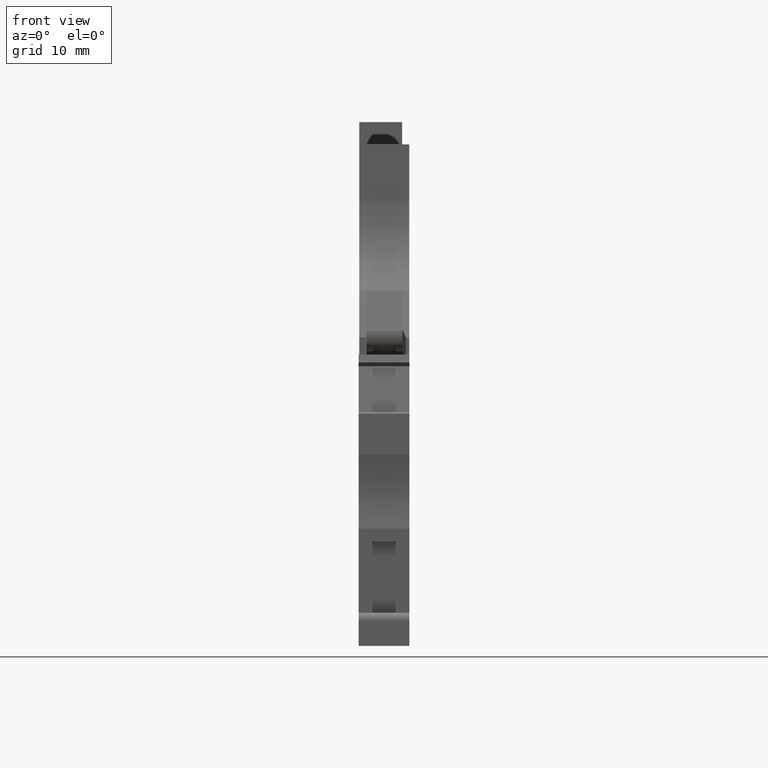
[diagram: clean part render]
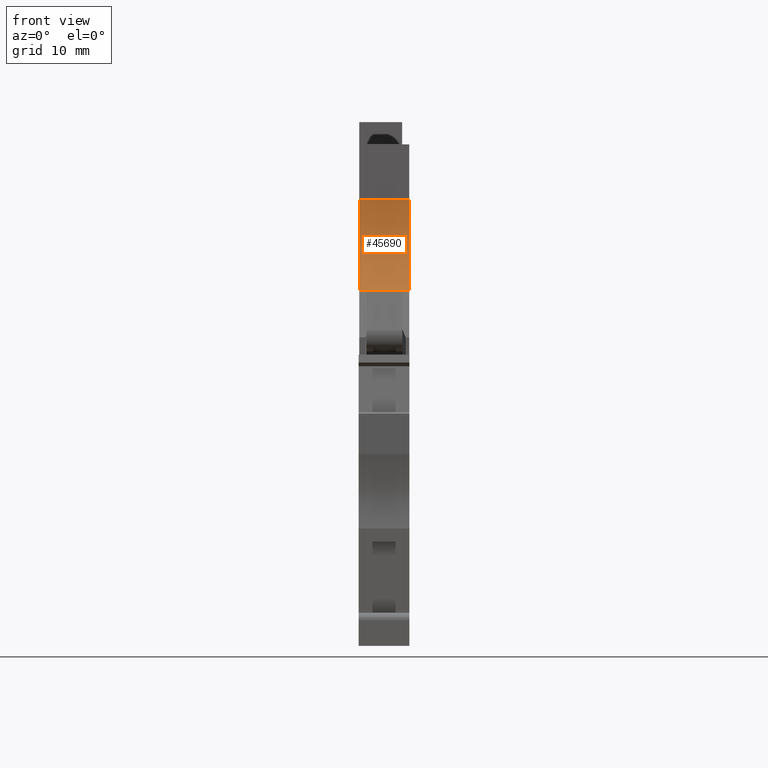
[diagram: same view with one face highlighted and labeled with its STEP entity id]
A machine part, front view. The second image highlights one B-rep face of the part: STEP entity #45690.
In plain terms, the highlighted cylindrical surface (partial cylindrical patch) has radius 15 mm, axis along (1, -0, -0).
Its self-contained STEP definition (entity closure, byte-faithful):
#29240=CARTESIAN_POINT('',(-36.204426536731,26.8215328246752,
-5.0749999965275));
#29250=VERTEX_POINT('',#29240);
#29280=CARTESIAN_POINT('',(-36.204426536731,26.8215328246752,
1.0500000034725));
#29290=DIRECTION('',(0.,0.,1.));
#29300=VECTOR('',#29290,1.);
#29310=LINE('',#29280,#29300);
#29320=CARTESIAN_POINT('',(-36.204426536731,26.8215328246752,
0.974999999999994));
#29330=VERTEX_POINT('',#29320);
#29340=EDGE_CURVE('',#29250,#29330,#29310,.T.);
#45370=CARTESIAN_POINT('',(-47.0537415220332,37.1797355708348,
1.0500000034725));
#45380=DIRECTION('',(0.,0.,1.));
#45390=DIRECTION('',(0.999876267087619,0.015730559905122,0.));
#45400=AXIS2_PLACEMENT_3D('',#45370,#45380,#45390);
#45410=CYLINDRICAL_SURFACE('',#45400,14.999999992695);
#45420=ORIENTED_EDGE('',*,*,#29340,.T.);
#45430=CARTESIAN_POINT('',(-47.0537415220332,37.1797355708348,
-5.0749999965275));
#45440=DIRECTION('',(0.,0.,1.));
#45450=DIRECTION('',(0.999876267087619,0.015730559905122,0.));
#45460=AXIS2_PLACEMENT_3D('',#45430,#45440,#45450);
#45470=CIRCLE('',#45460,14.999999992695);
#45480=CARTESIAN_POINT('',(-32.0677276298301,37.8273368397847,
-5.0749999965275));
#45490=VERTEX_POINT('',#45480);
#45500=EDGE_CURVE('',#29250,#45490,#45470,.T.);
#45510=ORIENTED_EDGE('',*,*,#45500,.F.);
#45520=CARTESIAN_POINT('',(-32.0677276298301,37.8273368397847,
-1.85000000000001));
#45530=DIRECTION('',(0.,0.,-1.));
#45540=VECTOR('',#45530,1.);
#45550=LINE('',#45520,#45540);
#45560=CARTESIAN_POINT('',(-32.0677276298301,37.8273368397847,
0.974999999999994));
#45570=VERTEX_POINT('',#45560);
#45580=EDGE_CURVE('',#45570,#45490,#45550,.T.);
#45590=ORIENTED_EDGE('',*,*,#45580,.T.);
#45600=CARTESIAN_POINT('',(-47.0537415220332,37.1797355708348,
0.974999999999994));
#45610=DIRECTION('',(0.,0.,1.));
#45620=DIRECTION('',(0.999876267087619,0.015730559905122,0.));
#45630=AXIS2_PLACEMENT_3D('',#45600,#45610,#45620);
#45640=CIRCLE('',#45630,14.999999992695);
#45650=EDGE_CURVE('',#29330,#45570,#45640,.T.);
#45660=ORIENTED_EDGE('',*,*,#45650,.T.);
#45670=EDGE_LOOP('',(#45660,#45590,#45510,#45420));
#45680=FACE_OUTER_BOUND('',#45670,.T.);
#45690=ADVANCED_FACE('',(#45680),#45410,.F.);